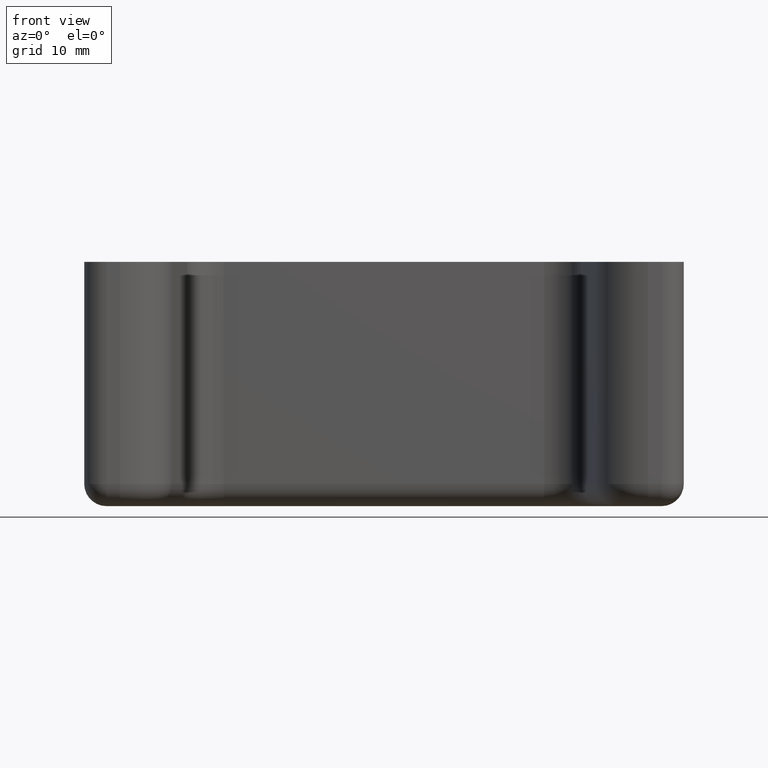
[diagram: clean part render]
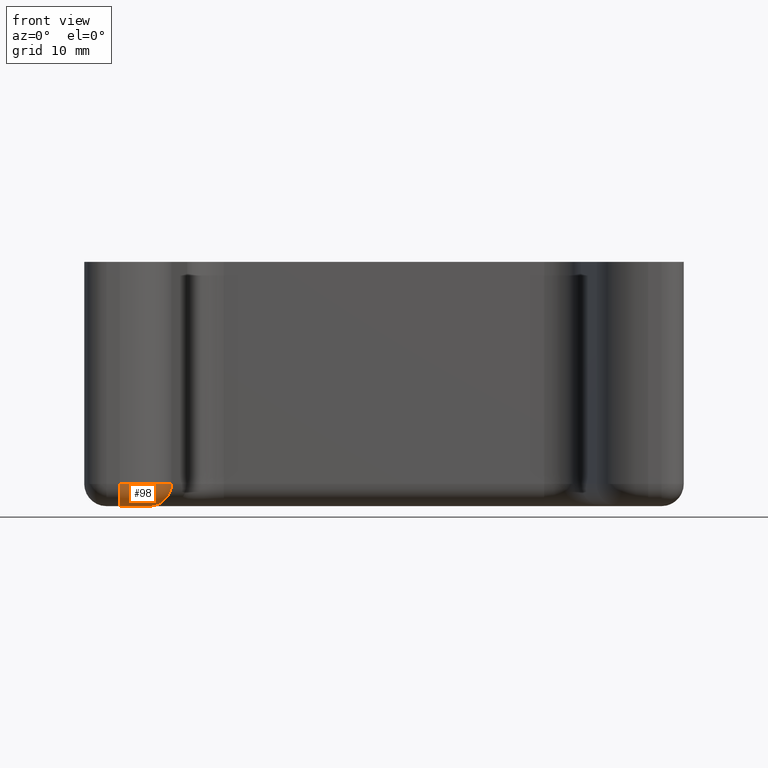
[diagram: same view with one face highlighted and labeled with its STEP entity id]
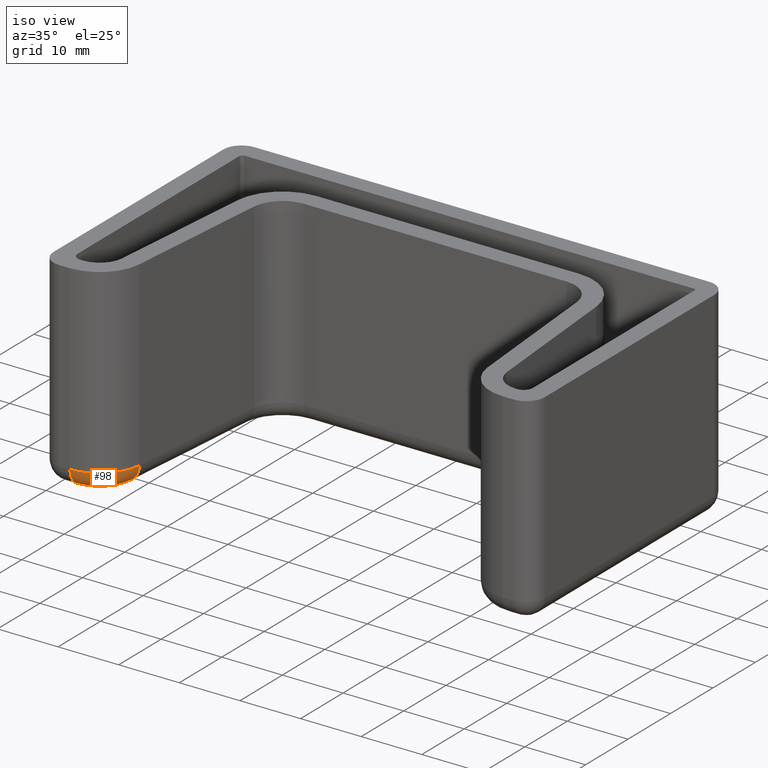
[diagram: same view with one face highlighted and labeled with its STEP entity id]
A machine part, front view. The second image highlights one B-rep face of the part: STEP entity #98.
A second angle (iso view) of the same face is appended — the face is thin or edge-on in the first view.
In plain terms, the highlighted toroidal blend (fillet) surface has major radius 4 mm and minor (blend) radius 3 mm.
Its self-contained STEP definition (entity closure, byte-faithful):
#98 = ADVANCED_FACE( '', ( #174 ), #175, .T. );
#174 = FACE_OUTER_BOUND( '', #277, .T. );
#175 = TOROIDAL_SURFACE( '', #278, 4.00000000000000, 3.00000000000000 );
#277 = EDGE_LOOP( '', ( #530, #531, #532, #533 ) );
#278 = AXIS2_PLACEMENT_3D( '', #534, #535, #536 );
#530 = ORIENTED_EDGE( '', *, *, #820, .T. );
#531 = ORIENTED_EDGE( '', *, *, #793, .T. );
#532 = ORIENTED_EDGE( '', *, *, #821, .F. );
#533 = ORIENTED_EDGE( '', *, *, #817, .T. );
#534 = CARTESIAN_POINT( '', ( -35.6964279194770, -33.5000000000000, -30.0000000000000 ) );
#535 = DIRECTION( '', ( 1.22460635382238E-016, 1.22460635382238E-016, 1.00000000000000 ) );
#536 = DIRECTION( '', ( -1.00000000000000, 1.49966072182214E-032, 1.22460635382238E-016 ) );
#793 = EDGE_CURVE( '', #967, #965, #968, .T. );
#817 = EDGE_CURVE( '', #1004, #1001, #1005, .T. );
#820 = EDGE_CURVE( '', #1001, #967, #1008, .T. );
#821 = EDGE_CURVE( '', #1004, #965, #1009, .T. );
#965 = VERTEX_POINT( '', #1197 );
#967 = VERTEX_POINT( '', #1200 );
#968 = CIRCLE( '', #1201, 4.00000000000000 );
#1001 = VERTEX_POINT( '', #1250 );
#1004 = VERTEX_POINT( '', #1255 );
#1005 = CIRCLE( '', #1256, 7.00000000000000 );
#1008 = CIRCLE( '', #1260, 3.00000000000000 );
#1009 = CIRCLE( '', #1261, 3.00000000000000 );
#1197 = CARTESIAN_POINT( '', ( -31.7116491271101, -33.8486229709906, -33.0000000000000 ) );
#1200 = CARTESIAN_POINT( '', ( -35.6964279194770, -37.5000000000000, -33.0000000000000 ) );
#1201 = AXIS2_PLACEMENT_3D( '', #1441, #1442, #1443 );
#1250 = CARTESIAN_POINT( '', ( -35.6964279194770, -40.5000000000000, -30.0000000000000 ) );
#1255 = CARTESIAN_POINT( '', ( -28.7230650328348, -34.1100901992336, -30.0000000000000 ) );
#1256 = AXIS2_PLACEMENT_3D( '', #1477, #1478, #1479 );
#1260 = AXIS2_PLACEMENT_3D( '', #1484, #1485, #1486 );
#1261 = AXIS2_PLACEMENT_3D( '', #1487, #1488, #1489 );
#1441 = CARTESIAN_POINT( '', ( -35.6964279194770, -33.5000000000000, -33.0000000000000 ) );
#1442 = DIRECTION( '', ( 1.22460635382238E-016, 1.22460635382238E-016, 1.00000000000000 ) );
#1443 = DIRECTION( '', ( 0.675590207615660, -0.737277336810124, 7.55424503606024E-018 ) );
#1477 = CARTESIAN_POINT( '', ( -35.6964279194770, -33.5000000000000, -30.0000000000000 ) );
#1478 = DIRECTION( '', ( -1.22460635382238E-016, -1.22460635382238E-016, -1.00000000000000 ) );
#1479 = DIRECTION( '', ( 0.675590207615660, -0.737277336810124, 7.55424503606023E-018 ) );
#1484 = CARTESIAN_POINT( '', ( -35.6964279194770, -37.5000000000000, -30.0000000000000 ) );
#1485 = DIRECTION( '', ( 1.00000000000000, -1.49966072182214E-032, -1.22460635382238E-016 ) );
#1486 = DIRECTION( '', ( 0.000000000000000, -1.00000000000000, 1.22460635382238E-016 ) );
#1487 = CARTESIAN_POINT( '', ( -31.7116491271101, -33.8486229709906, -30.0000000000000 ) );
#1488 = DIRECTION( '', ( 0.0871557427476570, 0.996194698091746, -1.32667783326821E-016 ) );
#1489 = DIRECTION( '', ( 0.996194698091746, -0.0871557427476570, -1.11321488058643E-016 ) );